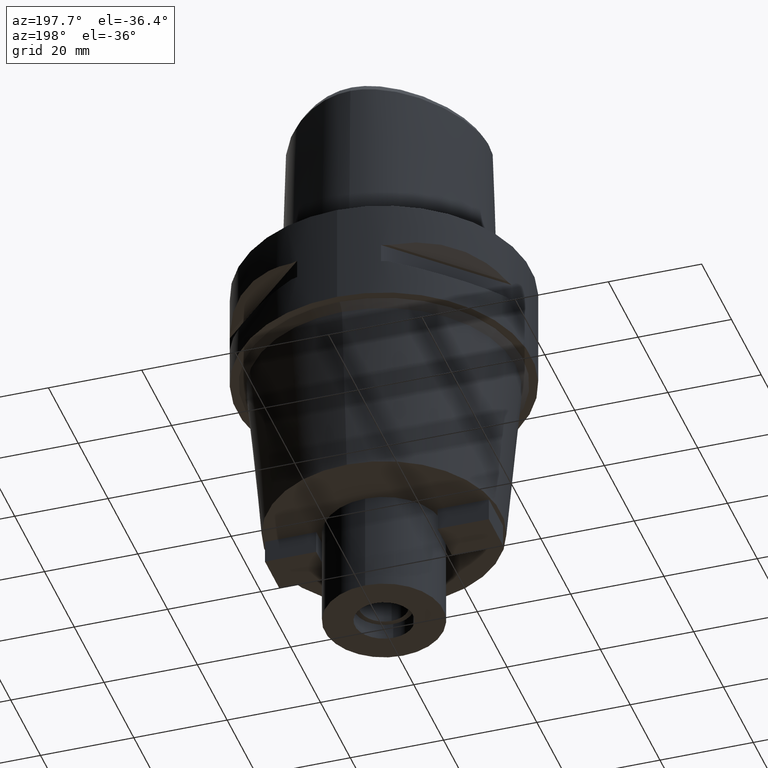
[diagram: clean part render]
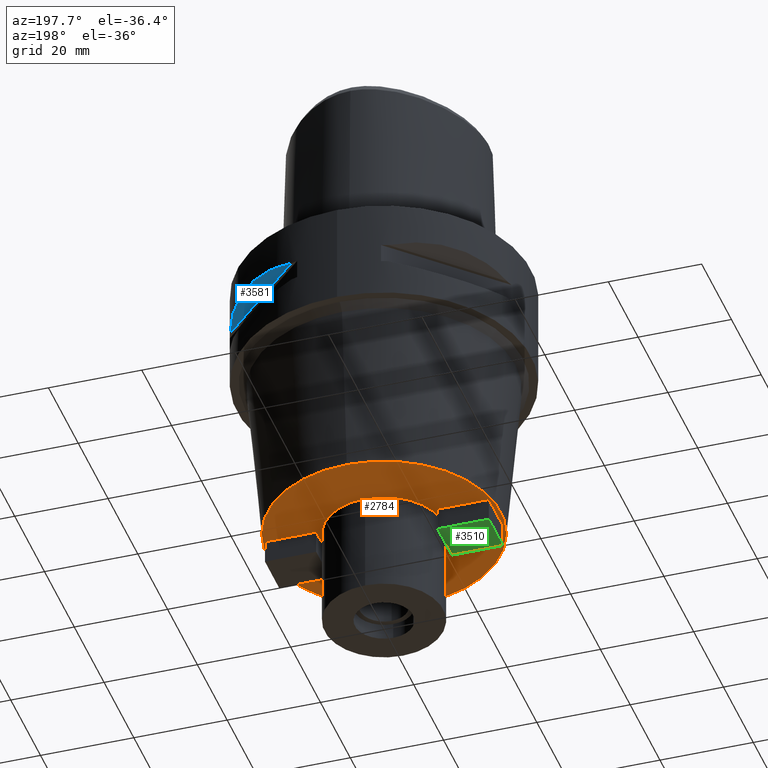
[diagram: same view with three faces highlighted in distinct colors, each labeled with its STEP entity id]
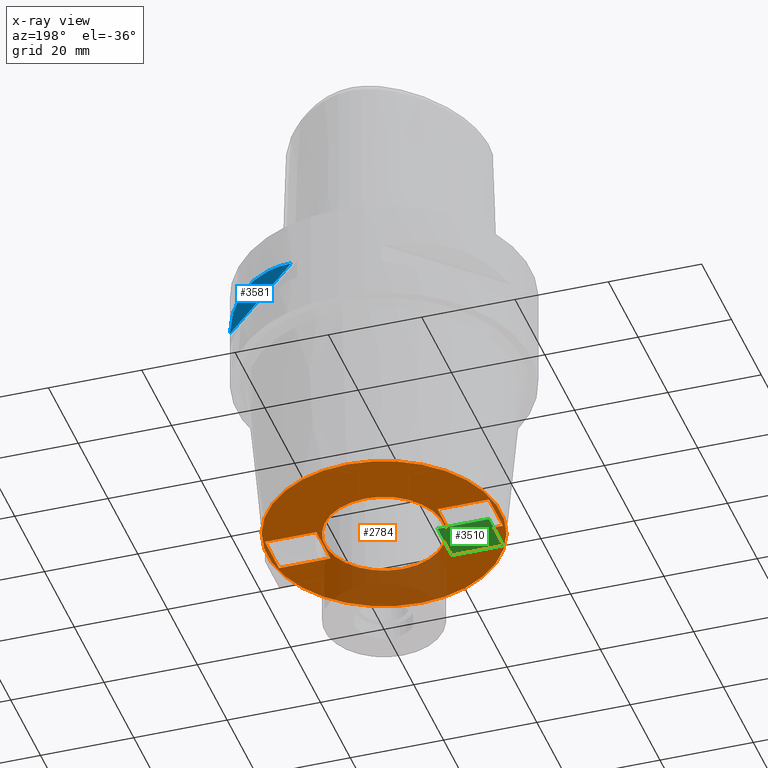
[diagram: x-ray of the same camera — body ghosted, the three highlighted faces saturated]
A machine part, auxiliary view with three faces highlighted in distinct colors.
The next image is the same camera in x-ray (body ghosted, the three faces saturated) — at least one of them is partly hidden behind the body in this view.
Their STEP definitions:

[orange] entity #2784 — the highlighted planar face has unit normal (0, 0, -1).
#589=CARTESIAN_POINT('',(0.E0,0.E0,-6.E1));
#590=DIRECTION('',(0.E0,0.E0,1.E0));
#591=DIRECTION('',(0.E0,-1.E0,0.E0));
#592=AXIS2_PLACEMENT_3D('',#589,#590,#591);
#597=CARTESIAN_POINT('',(0.E0,0.E0,-6.E1));
#598=DIRECTION('',(0.E0,0.E0,1.E0));
#599=DIRECTION('',(0.E0,1.E0,0.E0));
#600=AXIS2_PLACEMENT_3D('',#597,#598,#599);
#605=CARTESIAN_POINT('',(0.E0,1.274857317912E-14,-6.E1));
#606=DIRECTION('',(0.E0,0.E0,-1.E0));
#607=DIRECTION('',(0.E0,-1.E0,0.E0));
#608=AXIS2_PLACEMENT_3D('',#605,#606,#607);
#613=CARTESIAN_POINT('',(0.E0,1.274857317912E-14,-6.E1));
#614=DIRECTION('',(0.E0,0.E0,-1.E0));
#615=DIRECTION('',(0.E0,1.E0,0.E0));
#616=AXIS2_PLACEMENT_3D('',#613,#614,#615);
#621=DIRECTION('',(1.E0,0.E0,0.E0));
#622=VECTOR('',#621,1.1E1);
#623=CARTESIAN_POINT('',(1.3E1,4.75E0,-6.E1));
#624=LINE('',#623,#622);
#628=DIRECTION('',(0.E0,-1.E0,0.E0));
#629=VECTOR('',#628,9.5E0);
#630=CARTESIAN_POINT('',(2.4E1,4.75E0,-6.E1));
#631=LINE('',#630,#629);
#635=DIRECTION('',(-1.E0,0.E0,0.E0));
#636=VECTOR('',#635,1.1E1);
#637=CARTESIAN_POINT('',(-1.3E1,-4.75E0,-6.E1));
#638=LINE('',#637,#636);
#642=DIRECTION('',(0.E0,1.E0,0.E0));
#643=VECTOR('',#642,9.5E0);
#644=CARTESIAN_POINT('',(-2.4E1,-4.75E0,-6.E1));
#645=LINE('',#644,#643);
#1256=DIRECTION('',(1.E0,0.E0,0.E0));
#1257=VECTOR('',#1256,1.1E1);
#1258=CARTESIAN_POINT('',(1.3E1,-4.75E0,-6.E1));
#1259=LINE('',#1258,#1257);
#1298=DIRECTION('',(0.E0,-1.E0,0.E0));
#1299=VECTOR('',#1298,9.5E0);
#1300=CARTESIAN_POINT('',(1.3E1,4.75E0,-6.E1));
#1301=LINE('',#1300,#1299);
#1326=DIRECTION('',(-1.E0,0.E0,0.E0));
#1327=VECTOR('',#1326,1.1E1);
#1328=CARTESIAN_POINT('',(-1.3E1,4.75E0,-6.E1));
#1329=LINE('',#1328,#1327);
#1368=DIRECTION('',(0.E0,1.E0,0.E0));
#1369=VECTOR('',#1368,9.5E0);
#1370=CARTESIAN_POINT('',(-1.3E1,-4.75E0,-6.E1));
#1371=LINE('',#1370,#1369);
#1774=CARTESIAN_POINT('',(0.E0,2.5E1,-6.E1));
#1775=VERTEX_POINT('',#1774);
#1776=CARTESIAN_POINT('',(0.E0,-2.5E1,-6.E1));
#1777=VERTEX_POINT('',#1776);
#1778=CARTESIAN_POINT('',(0.E0,-1.27E1,-6.E1));
#1779=CARTESIAN_POINT('',(0.E0,1.27E1,-6.E1));
#1780=VERTEX_POINT('',#1778);
#1781=VERTEX_POINT('',#1779);
#1782=CARTESIAN_POINT('',(1.3E1,-4.75E0,-6.E1));
#1783=CARTESIAN_POINT('',(2.4E1,-4.75E0,-6.E1));
#1784=VERTEX_POINT('',#1782);
#1785=VERTEX_POINT('',#1783);
#1786=CARTESIAN_POINT('',(1.3E1,4.75E0,-6.E1));
#1787=VERTEX_POINT('',#1786);
#1788=CARTESIAN_POINT('',(2.4E1,4.75E0,-6.E1));
#1789=VERTEX_POINT('',#1788);
#1790=CARTESIAN_POINT('',(-1.3E1,4.75E0,-6.E1));
#1791=CARTESIAN_POINT('',(-2.4E1,4.75E0,-6.E1));
#1792=VERTEX_POINT('',#1790);
#1793=VERTEX_POINT('',#1791);
#1794=CARTESIAN_POINT('',(-1.3E1,-4.75E0,-6.E1));
#1795=VERTEX_POINT('',#1794);
#1796=CARTESIAN_POINT('',(-2.4E1,-4.75E0,-6.E1));
#1797=VERTEX_POINT('',#1796);
#2749=CARTESIAN_POINT('',(0.E0,0.E0,-6.E1));
#2750=DIRECTION('',(0.E0,0.E0,-1.E0));
#2751=DIRECTION('',(0.E0,-1.E0,0.E0));
#2752=AXIS2_PLACEMENT_3D('',#2749,#2750,#2751);
#2753=PLANE('',#2752);
#2754=ORIENTED_EDGE('',*,*,#2728,.T.);
#2755=ORIENTED_EDGE('',*,*,#2744,.T.);
#2756=EDGE_LOOP('',(#2754,#2755));
#2757=FACE_OUTER_BOUND('',#2756,.F.);
#2759=ORIENTED_EDGE('',*,*,#2758,.T.);
#2761=ORIENTED_EDGE('',*,*,#2760,.T.);
#2762=EDGE_LOOP('',(#2759,#2761));
#2763=FACE_BOUND('',#2762,.F.);
#2765=ORIENTED_EDGE('',*,*,#2764,.F.);
#2767=ORIENTED_EDGE('',*,*,#2766,.F.);
#2769=ORIENTED_EDGE('',*,*,#2768,.T.);
#2771=ORIENTED_EDGE('',*,*,#2770,.T.);
#2772=EDGE_LOOP('',(#2765,#2767,#2769,#2771));
#2773=FACE_BOUND('',#2772,.F.);
#2775=ORIENTED_EDGE('',*,*,#2774,.F.);
#2777=ORIENTED_EDGE('',*,*,#2776,.F.);
#2779=ORIENTED_EDGE('',*,*,#2778,.T.);
#2781=ORIENTED_EDGE('',*,*,#2780,.T.);
#2782=EDGE_LOOP('',(#2775,#2777,#2779,#2781));
#2783=FACE_BOUND('',#2782,.F.);
#593=CIRCLE('',#592,2.5E1);
#601=CIRCLE('',#600,2.5E1);
#609=CIRCLE('',#608,1.27E1);
#617=CIRCLE('',#616,1.27E1);
#2728=EDGE_CURVE('',#1777,#1775,#593,.T.);
#2744=EDGE_CURVE('',#1775,#1777,#601,.T.);
#2758=EDGE_CURVE('',#1780,#1781,#609,.T.);
#2760=EDGE_CURVE('',#1781,#1780,#617,.T.);
#2764=EDGE_CURVE('',#1784,#1785,#1259,.T.);
#2766=EDGE_CURVE('',#1787,#1784,#1301,.T.);
#2768=EDGE_CURVE('',#1787,#1789,#624,.T.);
#2770=EDGE_CURVE('',#1789,#1785,#631,.T.);
#2774=EDGE_CURVE('',#1792,#1793,#1329,.T.);
#2776=EDGE_CURVE('',#1795,#1792,#1371,.T.);
#2778=EDGE_CURVE('',#1795,#1797,#638,.T.);
#2780=EDGE_CURVE('',#1797,#1793,#645,.T.);
#2784=ADVANCED_FACE('',(#2757,#2763,#2773,#2783),#2753,.T.);

[blue] entity #3581 — the highlighted planar face has unit normal (-0.3536, -0.3536, 0.866).
#1467=CARTESIAN_POINT('',(2.971690375018E1,1.044775724750E1,-9.949999999999E0));
#1468=CARTESIAN_POINT('',(2.888151197365E1,1.282388988809E1,-9.320995176198E0));
#1469=CARTESIAN_POINT('',(2.674739463903E1,1.711282138769E1,-8.441295977074E0));
#1470=CARTESIAN_POINT('',(2.244574140438E1,2.244574140438E1,-8.020283076294E0));
#1471=CARTESIAN_POINT('',(1.711282138769E1,2.674739463903E1,-8.441295977074E0));
#1472=CARTESIAN_POINT('',(1.282388988809E1,2.888151197365E1,-9.320995176198E0));
#1473=CARTESIAN_POINT('',(1.044775724750E1,2.971690375018E1,-9.949999999999E0));
#1494=DIRECTION('',(-7.071067811865E-1,7.071067811865E-1,0.E0));
#1495=VECTOR('',#1494,2.725068831944E1);
#1496=CARTESIAN_POINT('',(2.971690375018E1,1.044775724750E1,-9.949999999999E0));
#1497=LINE('',#1496,#1495);
#1753=VERTEX_POINT('',#1467);
#1754=VERTEX_POINT('',#1473);
#3571=CARTESIAN_POINT('',(8.838834764832E0,3.712310601229E1,-7.583270440699E0));
#3572=DIRECTION('',(-3.535533905933E-1,-3.535533905933E-1,8.660254037844E-1));
#3573=DIRECTION('',(-6.123724356958E-1,-6.123724356958E-1,-5.E-1));
#3574=AXIS2_PLACEMENT_3D('',#3571,#3572,#3573);
#3575=PLANE('',#3574);
#3576=ORIENTED_EDGE('',*,*,#2658,.T.);
#3578=ORIENTED_EDGE('',*,*,#3577,.F.);
#3579=EDGE_LOOP('',(#3576,#3578));
#3580=FACE_OUTER_BOUND('',#3579,.F.);
#1474=B_SPLINE_CURVE_WITH_KNOTS('',3,(#1467,#1468,#1469,#1470,#1471,#1472,
#1473),.UNSPECIFIED.,.F.,.F.,(4,1,1,1,4),(0.E0,2.5E-1,5.E-1,7.5E-1,1.E0),
.UNSPECIFIED.);
#2658=EDGE_CURVE('',#1753,#1754,#1474,.T.);
#3577=EDGE_CURVE('',#1753,#1754,#1497,.T.);
#3581=ADVANCED_FACE('',(#3580),#3575,.F.);

[green] entity #3510 — the highlighted planar face has unit normal (0, 0, -1).
#1333=DIRECTION('',(0.E0,1.E0,0.E0));
#1334=VECTOR('',#1333,9.5E0);
#1335=CARTESIAN_POINT('',(-2.4E1,-4.75E0,-6.5E1));
#1336=LINE('',#1335,#1334);
#1354=DIRECTION('',(-1.E0,0.E0,0.E0));
#1355=VECTOR('',#1354,1.1E1);
#1356=CARTESIAN_POINT('',(-1.3E1,-4.75E0,-6.5E1));
#1357=LINE('',#1356,#1355);
#1382=DIRECTION('',(-1.E0,0.E0,0.E0));
#1383=VECTOR('',#1382,1.1E1);
#1384=CARTESIAN_POINT('',(-1.3E1,4.75E0,-6.5E1));
#1385=LINE('',#1384,#1383);
#1389=DIRECTION('',(0.E0,1.E0,0.E0));
#1390=VECTOR('',#1389,9.5E0);
#1391=CARTESIAN_POINT('',(-1.3E1,-4.75E0,-6.5E1));
#1392=LINE('',#1391,#1390);
#1875=CARTESIAN_POINT('',(-2.4E1,4.75E0,-6.5E1));
#1876=VERTEX_POINT('',#1875);
#1877=CARTESIAN_POINT('',(-1.3E1,4.75E0,-6.5E1));
#1878=VERTEX_POINT('',#1877);
#1879=CARTESIAN_POINT('',(-2.4E1,-4.75E0,-6.5E1));
#1880=VERTEX_POINT('',#1879);
#1881=CARTESIAN_POINT('',(-1.3E1,-4.75E0,-6.5E1));
#1882=VERTEX_POINT('',#1881);
#3499=CARTESIAN_POINT('',(-2.4E1,4.75E0,-6.5E1));
#3500=DIRECTION('',(0.E0,0.E0,-1.E0));
#3501=DIRECTION('',(1.E0,0.E0,0.E0));
#3502=AXIS2_PLACEMENT_3D('',#3499,#3500,#3501);
#3503=PLANE('',#3502);
#3504=ORIENTED_EDGE('',*,*,#3451,.T.);
#3505=ORIENTED_EDGE('',*,*,#3466,.F.);
#3506=ORIENTED_EDGE('',*,*,#3480,.F.);
#3507=ORIENTED_EDGE('',*,*,#3493,.T.);
#3508=EDGE_LOOP('',(#3504,#3505,#3506,#3507));
#3509=FACE_OUTER_BOUND('',#3508,.F.);
#3451=EDGE_CURVE('',#1878,#1876,#1385,.T.);
#3466=EDGE_CURVE('',#1880,#1876,#1336,.T.);
#3480=EDGE_CURVE('',#1882,#1880,#1357,.T.);
#3493=EDGE_CURVE('',#1882,#1878,#1392,.T.);
#3510=ADVANCED_FACE('',(#3509),#3503,.T.);